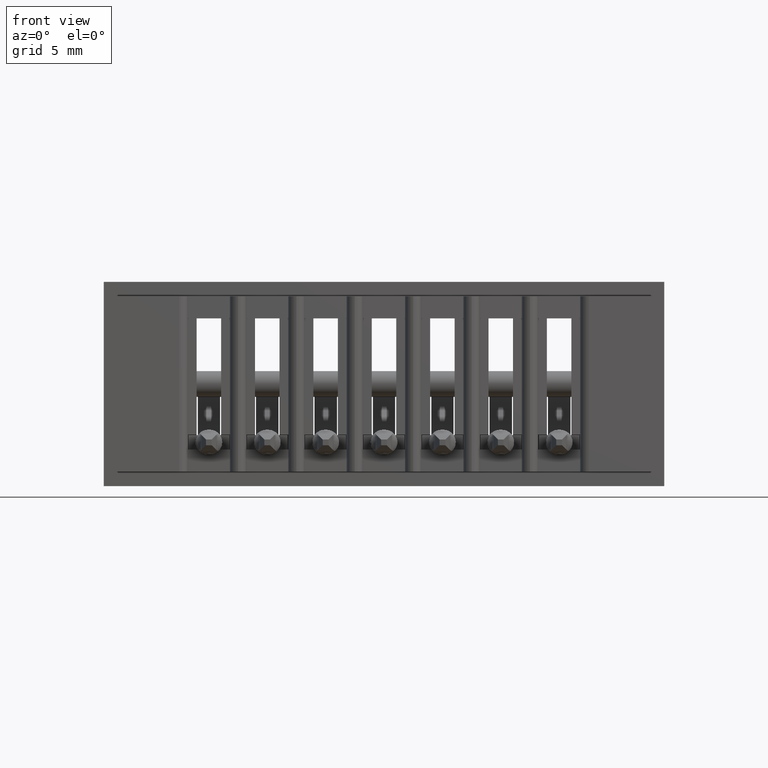
[diagram: clean part render]
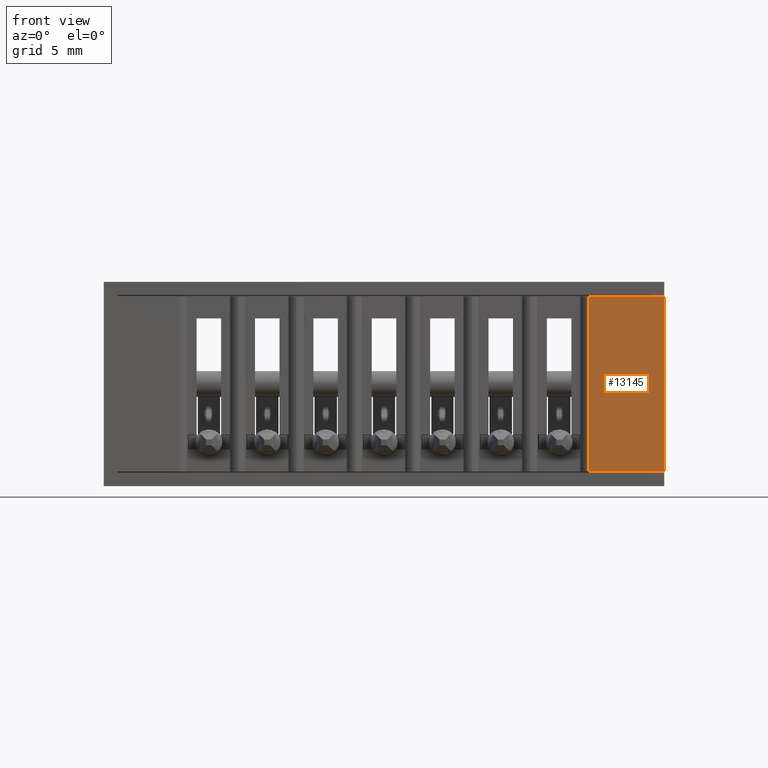
[diagram: same view with one face highlighted and labeled with its STEP entity id]
A machine part, front view. The second image highlights one B-rep face of the part: STEP entity #13145.
In plain terms, the highlighted planar face has unit normal (0, -1, 0).
Its self-contained STEP definition (entity closure, byte-faithful):
#98 = LINE ( 'NONE', #1422, #6430 ) ;
#637 = CARTESIAN_POINT ( 'NONE',  ( 0.0000000000000000000, 0.0000000000000000000, -0.3499999999999999800 ) ) ;
#938 = DIRECTION ( 'NONE',  ( -1.000000000000000000, -0.0000000000000000000, -0.0000000000000000000 ) ) ;
#1422 = CARTESIAN_POINT ( 'NONE',  ( 0.9599999999999999600, 0.0000000000000000000, -0.3249999999999999600 ) ) ;
#1471 = VERTEX_POINT ( 'NONE', #2947 ) ;
#1918 = DIRECTION ( 'NONE',  ( 0.0000000000000000000, -0.0000000000000000000, -1.000000000000000000 ) ) ;
#2038 = FACE_OUTER_BOUND ( 'NONE', #14966, .T. ) ;
#2431 = EDGE_CURVE ( 'NONE', #10562, #6054, #8237, .T. ) ;
#2441 = ORIENTED_EDGE ( 'NONE', *, *, #14378, .F. ) ;
#2681 = DIRECTION ( 'NONE',  ( -1.000000000000000000, -0.0000000000000000000, -0.0000000000000000000 ) ) ;
#2863 = ORIENTED_EDGE ( 'NONE', *, *, #6810, .T. ) ;
#2874 = EDGE_CURVE ( 'NONE', #4351, #1471, #8613, .T. ) ;
#2947 = CARTESIAN_POINT ( 'NONE',  ( 0.9599999999999999600, 0.0000000000000000000, -0.3249999999999999600 ) ) ;
#4351 = VERTEX_POINT ( 'NONE', #14940 ) ;
#6054 = VERTEX_POINT ( 'NONE', #7878 ) ;
#6069 = CARTESIAN_POINT ( 'NONE',  ( 0.8309999999999997400, 0.0000000000000000000, -0.3499999999999999800 ) ) ;
#6174 = ORIENTED_EDGE ( 'NONE', *, *, #2431, .F. ) ;
#6430 = VECTOR ( 'NONE', #2681, 39.37007874015748100 ) ;
#6810 = EDGE_CURVE ( 'NONE', #4351, #6054, #13853, .T. ) ;
#7471 = ORIENTED_EDGE ( 'NONE', *, *, #2874, .F. ) ;
#7878 = CARTESIAN_POINT ( 'NONE',  ( 0.8309999999999997400, 0.0000000000000000000, -0.02500000000000000500 ) ) ;
#8217 = VECTOR ( 'NONE', #16141, 39.37007874015748100 ) ;
#8237 = LINE ( 'NONE', #6069, #14934 ) ;
#8613 = LINE ( 'NONE', #15001, #8217 ) ;
#9476 = DIRECTION ( 'NONE',  ( 0.0000000000000000000, -1.000000000000000000, 0.0000000000000000000 ) ) ;
#9915 = DIRECTION ( 'NONE',  ( -0.0000000000000000000, -0.0000000000000000000, 1.000000000000000000 ) ) ;
#10500 = VECTOR ( 'NONE', #938, 39.37007874015748100 ) ;
#10562 = VERTEX_POINT ( 'NONE', #13439 ) ;
#10645 = AXIS2_PLACEMENT_3D ( 'NONE', #637, #9476, #1918 ) ;
#11036 = CARTESIAN_POINT ( 'NONE',  ( 0.9599999999999999600, 0.0000000000000000000, -0.02500000000000000500 ) ) ;
#13145 = ADVANCED_FACE ( 'NONE', ( #2038 ), #14477, .T. ) ;
#13439 = CARTESIAN_POINT ( 'NONE',  ( 0.8309999999999997400, 0.0000000000000000000, -0.3249999999999999600 ) ) ;
#13853 = LINE ( 'NONE', #11036, #10500 ) ;
#14378 = EDGE_CURVE ( 'NONE', #1471, #10562, #98, .T. ) ;
#14477 = PLANE ( 'NONE',  #10645 ) ;
#14934 = VECTOR ( 'NONE', #9915, 39.37007874015748100 ) ;
#14940 = CARTESIAN_POINT ( 'NONE',  ( 0.9599999999999999600, 0.0000000000000000000, -0.02500000000000000500 ) ) ;
#14966 = EDGE_LOOP ( 'NONE', ( #2863, #6174, #2441, #7471 ) ) ;
#15001 = CARTESIAN_POINT ( 'NONE',  ( 0.9599999999999999600, 0.0000000000000000000, 0.0000000000000000000 ) ) ;
#16141 = DIRECTION ( 'NONE',  ( 0.0000000000000000000, 0.0000000000000000000, -1.000000000000000000 ) ) ;